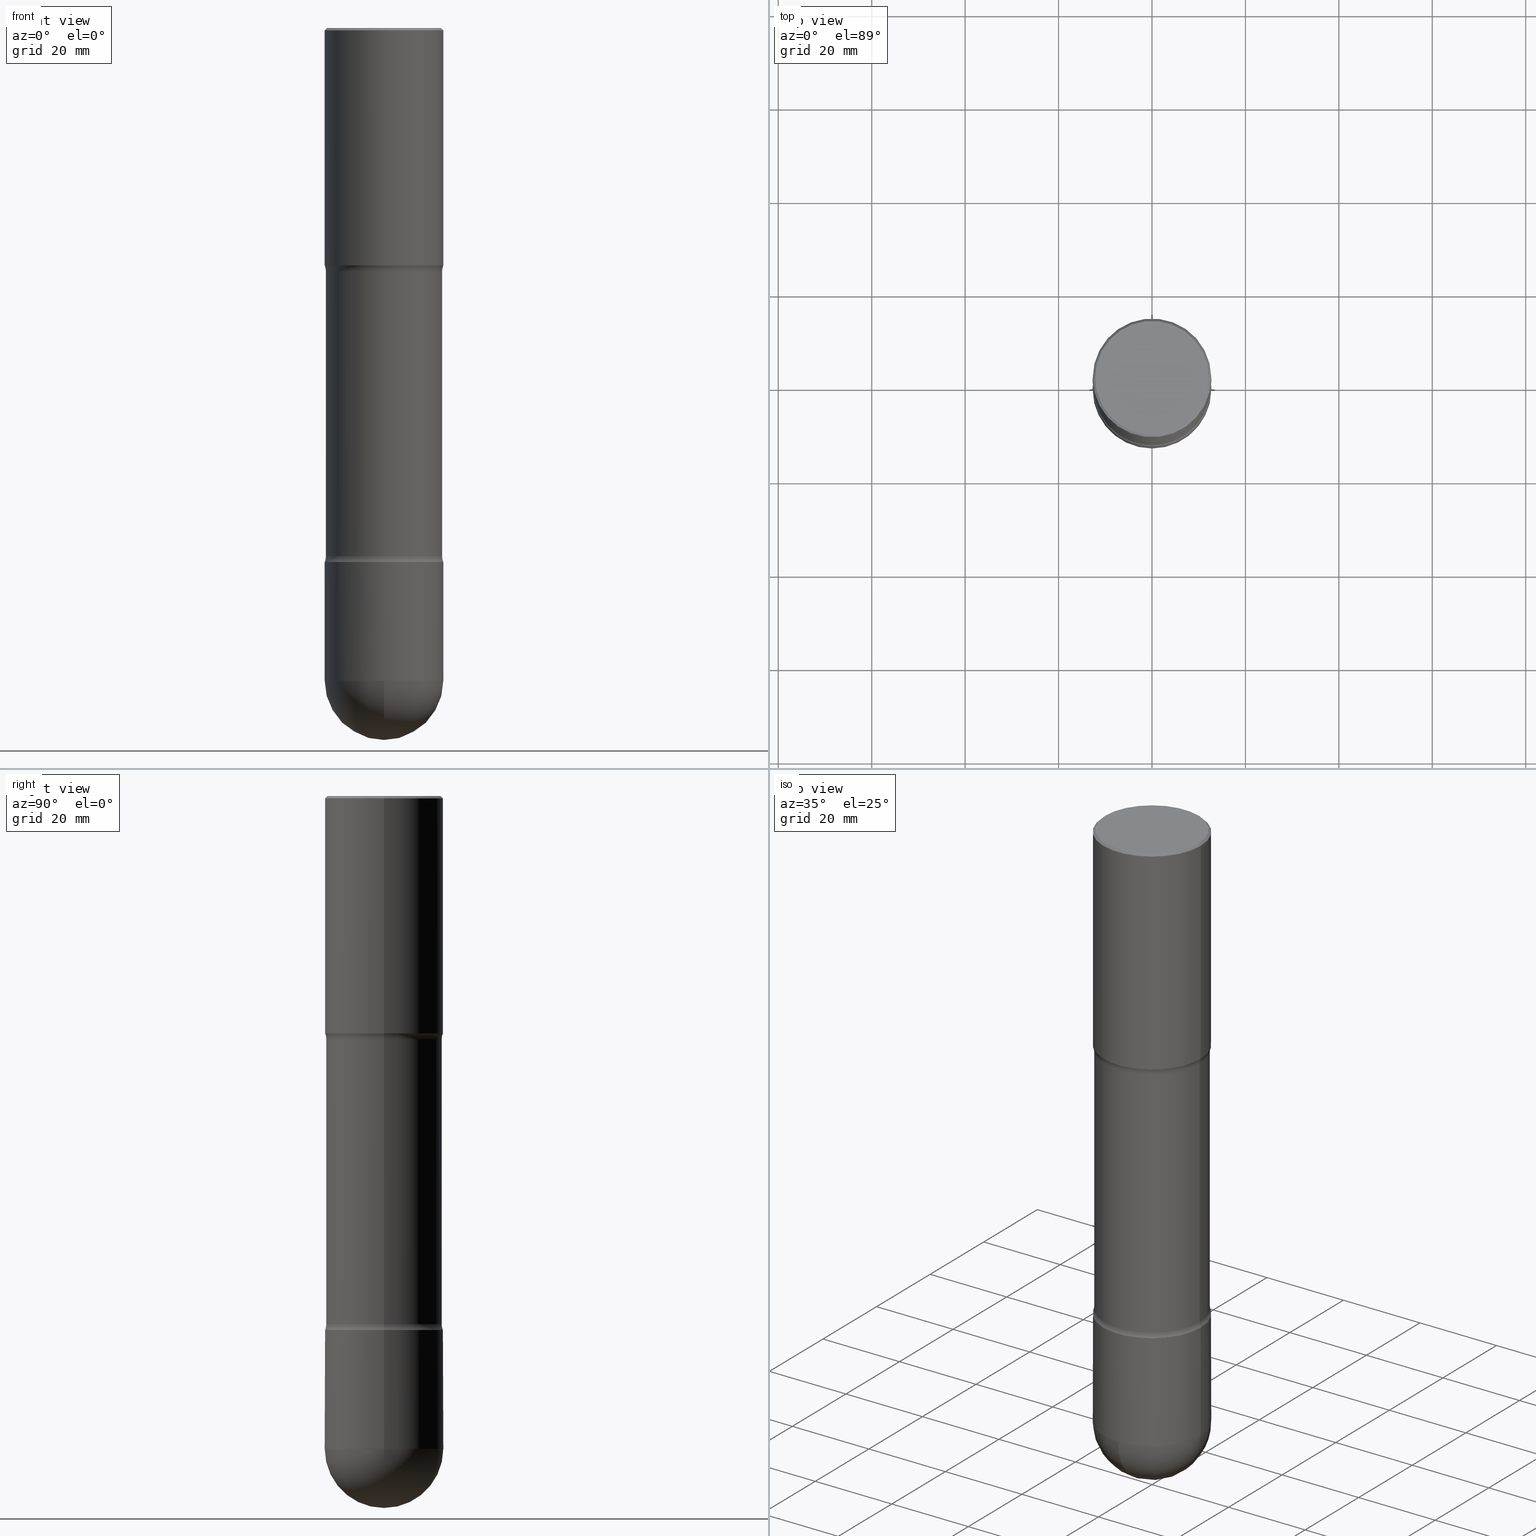
[diagram: canonical four-view strip — front | top / right | iso, engineering-drawing reading convention]
A machine part, canonical four-view strip (front | top / right | iso — engineering-drawing reading convention). The complete STEP part file that produces these views, byte-faithful:
ISO-10303-21;
HEADER;
FILE_DESCRIPTION (( 'STEP AP203' ),
    '1' );
FILE_NAME ('36504.STEP',
    '2024-02-29T19:25:03',
    ( '' ),
    ( '' ),
    'SwSTEP 2.0',
    'SolidWorks 2023',
    '' );
FILE_SCHEMA (( 'CONFIG_CONTROL_DESIGN' ));
ENDSEC;

DATA;
#1 =( CONVERSION_BASED_UNIT ( 'INCH', #350 ) LENGTH_UNIT ( ) NAMED_UNIT ( #161 ) );
#2 = DIRECTION ( 'NONE',  ( 1.000000000000000000, -6.982962677686265922E-15, 4.883557194083112340E-29 ) ) ;
#3 = EDGE_CURVE ( 'NONE', #564, #496, #482, .T. ) ;
#4 = ORIENTED_EDGE ( 'NONE', *, *, #517, .T. ) ;
#5 = CONICAL_SURFACE ( 'NONE', #86, 0.4994999999999991114, 0.7853981633978374122 ) ;
#6 = VECTOR ( 'NONE', #16, 39.37007874015748143 ) ;
#7 =( LENGTH_UNIT ( ) NAMED_UNIT ( * ) SI_UNIT ( $, .METRE. ) );
#8 = CARTESIAN_POINT ( 'NONE',  ( 1.100375108488801115E-28, -1.571044025300600309E-14, -4.499648925006553668 ) ) ;
#9 = CC_DESIGN_SECURITY_CLASSIFICATION ( #373, ( #389 ) ) ;
#10 = VERTEX_POINT ( 'NONE', #137 ) ;
#11 = LINE ( 'NONE', #225, #208 ) ;
#12 = ORIENTED_EDGE ( 'NONE', *, *, #37, .F. ) ;
#13 = ORIENTED_EDGE ( 'NONE', *, *, #199, .T. ) ;
#14 = CC_DESIGN_PERSON_AND_ORGANIZATION_ASSIGNMENT ( #465, #327, ( #389 ) ) ;
#15 = EDGE_CURVE ( 'NONE', #564, #408, #177, .T. ) ;
#16 = DIRECTION ( 'NONE',  ( -2.445468806185136877E-29, 3.491481338843145188E-15, 1.000000000000000000 ) ) ;
#17 = PLANE ( 'NONE',  #323 ) ;
#18 = ORIENTED_EDGE ( 'NONE', *, *, #224, .T. ) ;
#19 = DIRECTION ( 'NONE',  ( -1.000000000000000000, 6.860497997771529196E-15, 0.000000000000000000 ) ) ;
#20 = COORDINATED_UNIVERSAL_TIME_OFFSET ( 5, 0, .BEHIND. ) ;
#21 = VECTOR ( 'NONE', #222, 39.37007874015748143 ) ;
#22 = DIRECTION ( 'NONE',  ( 0.7071067811868226860, -2.468850131085139164E-15, 0.7071067811862723484 ) ) ;
#23 = DIRECTION ( 'NONE',  ( 1.000000000000000000, -6.982962677686266711E-15, 4.876176775795935232E-29 ) ) ;
#24 = ORIENTED_EDGE ( 'NONE', *, *, #3, .T. ) ;
#25 = DIRECTION ( 'NONE',  ( -1.000000000000000000, 6.982962677686268288E-15, 0.000000000000000000 ) ) ;
#26 = DIRECTION ( 'NONE',  ( -1.000000000000000000, 6.982962677686268288E-15, 0.000000000000000000 ) ) ;
#27 = DIRECTION ( 'NONE',  ( -1.000000000000000000, 6.982962677686265133E-15, 0.000000000000000000 ) ) ;
#28 = CARTESIAN_POINT ( 'NONE',  ( 4.890937612370354609E-31, -6.982962677686407473E-17, -0.02000000000000033348 ) ) ;
#29 = DIRECTION ( 'NONE',  ( 1.000000000000000000, 0.000000000000000000, 0.000000000000000000 ) ) ;
#30 = DIRECTION ( 'NONE',  ( -1.000000000000000000, 6.982962677686265922E-15, -4.876176775795935793E-29 ) ) ;
#31 = DATE_AND_TIME ( #113, #348 ) ;
#32 = CARTESIAN_POINT ( 'NONE',  ( 0.000000000000000000, 0.000000000000000000, 0.000000000000000000 ) ) ;
#33 = PERSON_AND_ORGANIZATION ( #417, #278 ) ;
#34 = VECTOR ( 'NONE', #410, 39.37007874015748143 ) ;
#35 = LOCAL_TIME ( 14, 25, 3.000000000000000000, #20 ) ;
#36 = ORIENTED_EDGE ( 'NONE', *, *, #559, .T. ) ;
#37 = EDGE_CURVE ( 'NONE', #475, #490, #382, .T. ) ;
#38 = DIRECTION ( 'NONE',  ( 2.445468806185136597E-29, -3.491481338843145583E-15, -1.000000000000000000 ) ) ;
#39 = EDGE_LOOP ( 'NONE', ( #268, #462, #24, #203 ) ) ;
#40 = DIRECTION ( 'NONE',  ( 1.000000000000000000, -6.982962677686268288E-15, 0.000000000000000000 ) ) ;
#41 = ORIENTED_EDGE ( 'NONE', *, *, #500, .F. ) ;
#42 = DIRECTION ( 'NONE',  ( 2.445468806185136877E-29, -3.491481338843145188E-15, -1.000000000000000000 ) ) ;
#43 = AXIS2_PLACEMENT_3D ( 'NONE', #257, #219, #344 ) ;
#44 = CARTESIAN_POINT ( 'NONE',  ( 3.487989857504394083E-15, 0.4994999999999834572, -4.500000000000002665 ) ) ;
#45 = CARTESIAN_POINT ( 'NONE',  ( -0.4999999999999991118, 3.552713678800494618E-15, -2.459467545127448407E-29 ) ) ;
#46 = CARTESIAN_POINT ( 'NONE',  ( 1.100460962783311693E-28, -1.571166602479415690E-14, -4.500000000000000888 ) ) ;
#47 = ORIENTED_EDGE ( 'NONE', *, *, #307, .F. ) ;
#48 = ORIENTED_EDGE ( 'NONE', *, *, #328, .F. ) ;
#49 = DIRECTION ( 'NONE',  ( 2.438088387897960049E-29, -3.491481338843145188E-15, -1.000000000000000000 ) ) ;
#50 = APPLICATION_CONTEXT ( 'configuration controlled 3d designs of mechanical parts and assemblies' ) ;
#51 = DIRECTION ( 'NONE',  ( -1.000000000000000000, 6.982962677686265133E-15, 0.000000000000000000 ) ) ;
#52 = EDGE_LOOP ( 'NONE', ( #148, #144 ) ) ;
#53 = DIRECTION ( 'NONE',  ( 6.860497997771531562E-15, 1.000000000000000000, -3.491481338843145583E-15 ) ) ;
#54 = PERSON_AND_ORGANIZATION ( #417, #278 ) ;
#55 = CIRCLE ( 'NONE', #213, 0.4999999999999987788 ) ;
#56 = CARTESIAN_POINT ( 'NONE',  ( 1.100460962783311693E-28, -1.571166602479415690E-14, -4.500000000000000888 ) ) ;
#57 = VECTOR ( 'NONE', #281, 39.37007874015748143 ) ;
#58 = DIRECTION ( 'NONE',  ( -1.000000000000000000, 6.982962677686265922E-15, -4.883557194083112901E-29 ) ) ;
#59 = EDGE_LOOP ( 'NONE', ( #271, #481, #396, #120, #18 ) ) ;
#60 = CARTESIAN_POINT ( 'NONE',  ( -0.4999999999999992228, -1.390469301541523684E-14, -4.500000000000000888 ) ) ;
#61 = EDGE_CURVE ( 'NONE', #263, #302, #381, .T. ) ;
#62 = DIRECTION ( 'NONE',  ( -1.000000000000000000, 6.982962677686267499E-15, 0.000000000000000000 ) ) ;
#63 = ORIENTED_EDGE ( 'NONE', *, *, #544, .F. ) ;
#64 = DIRECTION ( 'NONE',  ( -1.000000000000000000, 6.982962677686265922E-15, -4.883557194083112901E-29 ) ) ;
#65 = COORDINATED_UNIVERSAL_TIME_OFFSET ( 5, 0, .BEHIND. ) ;
#66 = CIRCLE ( 'NONE', #138, 0.1250000000000084932 ) ;
#67 = AXIS2_PLACEMENT_3D ( 'NONE', #46, #227, #62 ) ;
#68 = DATE_AND_TIME ( #470, #107 ) ;
#69 = FACE_OUTER_BOUND ( 'NONE', #202, .T. ) ;
#70 = EDGE_CURVE ( 'NONE', #195, #91, #272, .T. ) ;
#71 = LOCAL_TIME ( 14, 25, 3.000000000000000000, #212 ) ;
#72 = AXIS2_PLACEMENT_3D ( 'NONE', #126, #530, #379 ) ;
#73 = VECTOR ( 'NONE', #543, 39.37007874015748143 ) ;
#74 = ORIENTED_EDGE ( 'NONE', *, *, #333, .T. ) ;
#75 = ADVANCED_FACE ( 'NONE', ( #69 ), #5, .T. ) ;
#76 = FACE_OUTER_BOUND ( 'NONE', #495, .T. ) ;
#77 = EDGE_LOOP ( 'NONE', ( #12, #84, #13, #289 ) ) ;
#78 = PRODUCT ( '36504', '36504', '', ( #280 ) ) ;
#79 = AXIS2_PLACEMENT_3D ( 'NONE', #183, #83, #361 ) ;
#80 = DIRECTION ( 'NONE',  ( -2.445468806185136597E-29, 3.491481338843145583E-15, 1.000000000000000000 ) ) ;
#81 = DIRECTION ( 'NONE',  ( -1.000000000000000000, 6.982962677686265922E-15, 0.000000000000000000 ) ) ;
#82 = DIRECTION ( 'NONE',  ( 2.445468806185136597E-29, -3.491481338843145583E-15, -1.000000000000000000 ) ) ;
#83 = DIRECTION ( 'NONE',  ( 6.860497997771531562E-15, 1.000000000000000000, -3.491481338843145583E-15 ) ) ;
#84 = ORIENTED_EDGE ( 'NONE', *, *, #178, .F. ) ;
#85 = CARTESIAN_POINT ( 'NONE',  ( 0.6150000000000083178, -1.975982533889140027E-14, -4.451010205144337206 ) ) ;
#86 = AXIS2_PLACEMENT_3D ( 'NONE', #157, #80, #386 ) ;
#87 = AXIS2_PLACEMENT_3D ( 'NONE', #140, #274, #260 ) ;
#88 = CARTESIAN_POINT ( 'NONE',  ( 0.4994999999999991114, -1.920026876819252099E-14, -4.500000000000000888 ) ) ;
#89 = DIRECTION ( 'NONE',  ( -2.445468806185136597E-29, 3.491481338843145583E-15, 1.000000000000000000 ) ) ;
#90 = PRODUCT_RELATED_PRODUCT_CATEGORY ( 'detail', '', ( #78 ) ) ;
#91 = VERTEX_POINT ( 'NONE', #521 ) ;
#92 = ORIENTED_EDGE ( 'NONE', *, *, #517, .F. ) ;
#93 =( NAMED_UNIT ( * ) PLANE_ANGLE_UNIT ( ) SI_UNIT ( $, .RADIAN. ) );
#94 = CARTESIAN_POINT ( 'NONE',  ( 1.100460962783311693E-28, -1.571166602479415690E-14, -4.500000000000000888 ) ) ;
#95 = DIRECTION ( 'NONE',  ( -2.438088387897960049E-29, 3.491481338843145188E-15, 1.000000000000000000 ) ) ;
#96 = ORIENTED_EDGE ( 'NONE', *, *, #37, .T. ) ;
#97 = PRODUCT_DEFINITION_SHAPE ( 'NONE', 'NONE',  #440 ) ;
#98 = DIRECTION ( 'NONE',  ( -1.000000000000000000, 6.982962677686267499E-15, -4.876176775795936353E-29 ) ) ;
#99 = CARTESIAN_POINT ( 'NONE',  ( -0.4999999999999996669, 3.421651712066266507E-15, -0.02000000000000033348 ) ) ;
#100 = CARTESIAN_POINT ( 'NONE',  ( 1.100375108488801115E-28, -1.571044025300600309E-14, -4.499648925006553668 ) ) ;
#101 = ORIENTED_EDGE ( 'NONE', *, *, #133, .F. ) ;
#102 = CALENDAR_DATE ( 2024, 29, 2 ) ;
#103 = CONICAL_SURFACE ( 'NONE', #173, 0.4994999999999991114, 0.7853981633978374122 ) ;
#104 = DIRECTION ( 'NONE',  ( 2.445468806185136597E-29, -3.491481338843145583E-15, -1.000000000000000000 ) ) ;
#105 = VECTOR ( 'NONE', #22, 39.37007874015748143 ) ;
#106 = APPLICATION_PROTOCOL_DEFINITION ( 'international standard', 'config_control_design', 1994, #159 ) ;
#107 = LOCAL_TIME ( 14, 25, 3.000000000000000000, #516 ) ;
#108 = DIRECTION ( 'NONE',  ( -2.445468806185136597E-29, 3.491481338843145583E-15, 1.000000000000000000 ) ) ;
#109 = ORIENTED_EDGE ( 'NONE', *, *, #509, .F. ) ;
#110 = CARTESIAN_POINT ( 'NONE',  ( 1.100460962783311693E-28, -1.571166602479415690E-14, -4.500000000000000888 ) ) ;
#111 = PERSON_AND_ORGANIZATION ( #417, #278 ) ;
#112 = DIRECTION ( 'NONE',  ( -2.445468806185136597E-29, 3.491481338843145583E-15, 1.000000000000000000 ) ) ;
#113 = CALENDAR_DATE ( 2024, 29, 2 ) ;
#114 = AXIS2_PLACEMENT_3D ( 'NONE', #162, #38, #166 ) ;
#115 = EDGE_CURVE ( 'NONE', #10, #195, #474, .T. ) ;
#116 = ORIENTED_EDGE ( 'NONE', *, *, #61, .T. ) ;
#117 = DESIGN_CONTEXT ( 'detailed design', #50, 'design' ) ;
#118 = ORIENTED_EDGE ( 'NONE', *, *, #70, .T. ) ;
#119 = DIRECTION ( 'NONE',  ( 2.445468806185136597E-29, -3.491481338843145583E-15, -1.000000000000000000 ) ) ;
#120 = ORIENTED_EDGE ( 'NONE', *, *, #70, .F. ) ;
#121 = CARTESIAN_POINT ( 'NONE',  ( 1.345007843401825128E-28, -1.920314736363730603E-14, -5.500000000000000888 ) ) ;
#122 = DIRECTION ( 'NONE',  ( -1.000000000000000000, 6.982962677686264344E-15, 0.000000000000000000 ) ) ;
#123 = EDGE_CURVE ( 'NONE', #256, #304, #338, .T. ) ;
#124 = CIRCLE ( 'NONE', #346, 0.4999999999999990563 ) ;
#125 = AXIS2_PLACEMENT_3D ( 'NONE', #135, #89, #23 ) ;
#126 = CARTESIAN_POINT ( 'NONE',  ( 1.088480661269218183E-28, -1.554061907026185434E-14, -4.451010205144337206 ) ) ;
#127 = VERTEX_POINT ( 'NONE', #533 ) ;
#128 = EDGE_CURVE ( 'NONE', #531, #10, #124, .T. ) ;
#129 = ADVANCED_FACE ( 'NONE', ( #259 ), #163, .F. ) ;
#130 = DIRECTION ( 'NONE',  ( -2.445468806185136597E-29, 3.491481338843145583E-15, 1.000000000000000000 ) ) ;
#131 = ORIENTED_EDGE ( 'NONE', *, *, #204, .F. ) ;
#132 = CARTESIAN_POINT ( 'NONE',  ( 1.340732011955928297E-28, -1.926437970359467045E-14, -5.500000000000000888 ) ) ;
#133 = EDGE_CURVE ( 'NONE', #525, #490, #477, .T. ) ;
#134 = LINE ( 'NONE', #399, #105 ) ;
#135 = CARTESIAN_POINT ( 'NONE',  ( 0.000000000000000000, 0.000000000000000000, 0.000000000000000000 ) ) ;
#136 = CIRCLE ( 'NONE', #201, 0.4899999999999997691 ) ;
#137 = CARTESIAN_POINT ( 'NONE',  ( -3.552713678800358146E-15, -0.5000000000000182077, -5.499999999999999112 ) ) ;
#138 = AXIS2_PLACEMENT_3D ( 'NONE', #563, #522, #565 ) ;
#139 = AXIS2_PLACEMENT_3D ( 'NONE', #196, #553, #303 ) ;
#140 = CARTESIAN_POINT ( 'NONE',  ( 1.340732011955928297E-28, -1.926437970359467045E-14, -5.500000000000000888 ) ) ;
#141 = ORIENTED_EDGE ( 'NONE', *, *, #224, .F. ) ;
#142 = CARTESIAN_POINT ( 'NONE',  ( -0.4799999999999996492, 3.351822085289405970E-15, -2.340564852382047723E-29 ) ) ;
#143 = CARTESIAN_POINT ( 'NONE',  ( 1.100460962783311693E-28, -1.571166602479415690E-14, -4.500000000000000888 ) ) ;
#144 = ORIENTED_EDGE ( 'NONE', *, *, #500, .T. ) ;
#145 = PERSON_AND_ORGANIZATION ( #417, #278 ) ;
#146 = DIRECTION ( 'NONE',  ( -1.000000000000000000, 6.982962677686266711E-15, 0.000000000000000000 ) ) ;
#147 = DIRECTION ( 'NONE',  ( -1.000000000000000000, 6.982962677686266711E-15, 0.000000000000000000 ) ) ;
#148 = ORIENTED_EDGE ( 'NONE', *, *, #433, .T. ) ;
#149 = CARTESIAN_POINT ( 'NONE',  ( -0.4899999999999995470, -1.229001431272789000E-14, -4.500000000000000888 ) ) ;
#150 = APPROVAL_ROLE ( '' ) ;
#151 = AXIS2_PLACEMENT_3D ( 'NONE', #214, #413, #451 ) ;
#152 = DIRECTION ( 'NONE',  ( 2.438088387897960049E-29, -3.491481338843145188E-15, -1.000000000000000000 ) ) ;
#153 = CARTESIAN_POINT ( 'NONE',  ( 0.000000000000000000, 0.000000000000000000, 0.000000000000000000 ) ) ;
#154 = CIRCLE ( 'NONE', #405, 0.4998510749934460540 ) ;
#155 = AXIS2_PLACEMENT_3D ( 'NONE', #534, #325, #510 ) ;
#156 = ORIENTED_EDGE ( 'NONE', *, *, #467, .F. ) ;
#157 = CARTESIAN_POINT ( 'NONE',  ( 1.100460962783311693E-28, -1.571166602479415690E-14, -4.500000000000000888 ) ) ;
#158 = MANIFOLD_SOLID_BREP ( 'Body-Move/Copy2[1]', #492 ) ;
#159 = APPLICATION_CONTEXT ( 'configuration controlled 3d designs of mechanical parts and assemblies' ) ;
#160 = PERSON_AND_ORGANIZATION_ROLE ( 'creator' ) ;
#161 = DIMENSIONAL_EXPONENTS ( 1.000000000000000000, 0.000000000000000000, 0.000000000000000000, 0.000000000000000000, 0.000000000000000000, 0.000000000000000000, 0.000000000000000000 ) ;
#162 = CARTESIAN_POINT ( 'NONE',  ( 5.010740627511209416E-29, -7.154009632218597667E-15, -2.048989794855664126 ) ) ;
#163 = TOROIDAL_SURFACE ( 'NONE', #244, 0.6149999999999876676, 0.1249999999999882871 ) ;
#164 = AXIS2_PLACEMENT_3D ( 'NONE', #143, #511, #26 ) ;
#165 = VERTEX_POINT ( 'NONE', #385 ) ;
#166 = DIRECTION ( 'NONE',  ( -1.000000000000000000, 6.982962677686265922E-15, 0.000000000000000000 ) ) ;
#167 = ORIENTED_EDGE ( 'NONE', *, *, #443, .T. ) ;
#168 = DIRECTION ( 'NONE',  ( -2.445468806185136597E-29, 3.491481338843145583E-15, 1.000000000000000000 ) ) ;
#169 = EDGE_CURVE ( 'NONE', #408, #490, #560, .T. ) ;
#170 = CARTESIAN_POINT ( 'NONE',  ( 0.4999999999999998335, -1.914191502367992268E-14, -4.500000000000000888 ) ) ;
#171 = DIRECTION ( 'NONE',  ( -2.445468806185136597E-29, 3.491481338843145583E-15, 1.000000000000000000 ) ) ;
#172 = APPROVAL_PERSON_ORGANIZATION ( #54, #538, #150 ) ;
#173 = AXIS2_PLACEMENT_3D ( 'NONE', #349, #345, #205 ) ;
#174 = EDGE_LOOP ( 'NONE', ( #63, #116, #74, #374 ) ) ;
#175 = DIRECTION ( 'NONE',  ( 2.445468806185136597E-29, -3.491481338843145583E-15, -1.000000000000000000 ) ) ;
#176 = CARTESIAN_POINT ( 'NONE',  ( 1.345007843401825128E-28, -1.920314736363730603E-14, -5.500000000000000888 ) ) ;
#177 = LINE ( 'NONE', #149, #21 ) ;
#178 = EDGE_CURVE ( 'NONE', #551, #475, #154, .T. ) ;
#179 = FACE_OUTER_BOUND ( 'NONE', #485, .T. ) ;
#180 = FACE_OUTER_BOUND ( 'NONE', #174, .T. ) ;
#181 = ORIENTED_EDGE ( 'NONE', *, *, #3, .F. ) ;
#182 = ORIENTED_EDGE ( 'NONE', *, *, #337, .T. ) ;
#183 = CARTESIAN_POINT ( 'NONE',  ( 0.6149999999999876676, -1.137321590084800476E-14, -2.048989794855664126 ) ) ;
#184 = CARTESIAN_POINT ( 'NONE',  ( 1.100460962783311693E-28, -1.571166602479415690E-14, -4.500000000000000888 ) ) ;
#185 = ORIENTED_EDGE ( 'NONE', *, *, #115, .T. ) ;
#186 = CARTESIAN_POINT ( 'NONE',  ( 0.000000000000000000, 0.000000000000000000, 0.000000000000000000 ) ) ;
#187 = AXIS2_PLACEMENT_3D ( 'NONE', #28, #449, #147 ) ;
#188 = CARTESIAN_POINT ( 'NONE',  ( 1.345007843401825128E-28, -1.920314736363730603E-14, -5.500000000000000888 ) ) ;
#189 = CARTESIAN_POINT ( 'NONE',  ( -0.4999999999999998335, -1.222018468595102670E-14, -4.500000000000000888 ) ) ;
#190 = CARTESIAN_POINT ( 'NONE',  ( 1.340732011955928297E-28, -1.926437970359467045E-14, -5.500000000000000888 ) ) ;
#191 = ORIENTED_EDGE ( 'NONE', *, *, #211, .T. ) ;
#192 = DIRECTION ( 'NONE',  ( 2.445468806185136597E-29, -3.491481338843145583E-15, -1.000000000000000000 ) ) ;
#193 = CARTESIAN_POINT ( 'NONE',  ( 0.4998510749934460540, -1.913966755218248714E-14, -4.499648925006553668 ) ) ;
#194 = ORIENTED_EDGE ( 'NONE', *, *, #115, .F. ) ;
#195 = VERTEX_POINT ( 'NONE', #387 ) ;
#196 = CARTESIAN_POINT ( 'NONE',  ( 4.890937612370277678E-29, -6.982962677686296687E-15, -2.000000000000001776 ) ) ;
#197 = DIRECTION ( 'NONE',  ( 1.000000000000000000, -6.982962677686266711E-15, 0.000000000000000000 ) ) ;
#198 = AXIS2_PLACEMENT_3D ( 'NONE', #239, #241, #326 ) ;
#199 = EDGE_CURVE ( 'NONE', #551, #408, #66, .T. ) ;
#200 = APPROVAL_ROLE ( '' ) ;
#201 = AXIS2_PLACEMENT_3D ( 'NONE', #431, #82, #438 ) ;
#202 = EDGE_LOOP ( 'NONE', ( #47, #401, #528, #412 ) ) ;
#203 = ORIENTED_EDGE ( 'NONE', *, *, #377, .T. ) ;
#204 = EDGE_CURVE ( 'NONE', #490, #408, #136, .T. ) ;
#205 = DIRECTION ( 'NONE',  ( 1.000000000000000000, -6.982962677686264344E-15, 0.000000000000000000 ) ) ;
#206 = AXIS2_PLACEMENT_3D ( 'NONE', #176, #171, #301 ) ;
#207 = TOROIDAL_SURFACE ( 'NONE', #155, 0.6149999999999876676, 0.1249999999999882871 ) ;
#208 = VECTOR ( 'NONE', #529, 39.37007874015748143 ) ;
#209 = ORIENTED_EDGE ( 'NONE', *, *, #377, .F. ) ;
#210 = EDGE_LOOP ( 'NONE', ( #557, #191, #141, #194 ) ) ;
#211 = EDGE_CURVE ( 'NONE', #317, #127, #55, .T. ) ;
#212 = COORDINATED_UNIVERSAL_TIME_OFFSET ( 5, 0, .BEHIND. ) ;
#213 = AXIS2_PLACEMENT_3D ( 'NONE', #296, #2, #251 ) ;
#214 = CARTESIAN_POINT ( 'NONE',  ( -0.6149999999999876676, -2.859487585441629073E-15, -2.048989794855664126 ) ) ;
#215 = DIRECTION ( 'NONE',  ( 1.000000000000000000, -6.982962677686268288E-15, 0.000000000000000000 ) ) ;
#216 = CARTESIAN_POINT ( 'NONE',  ( -0.4998510749934460540, -1.221999885192540829E-14, -4.499648925006553668 ) ) ;
#217 = DIRECTION ( 'NONE',  ( -1.000000000000000000, 6.982962677686265922E-15, -4.876176775795935793E-29 ) ) ;
#218 = ORIENTED_EDGE ( 'NONE', *, *, #204, .T. ) ;
#219 = DIRECTION ( 'NONE',  ( 2.445468806185136597E-29, -3.491481338843145583E-15, -1.000000000000000000 ) ) ;
#220 = CARTESIAN_POINT ( 'NONE',  ( 1.100460962783311693E-28, -1.571166602479415690E-14, -4.500000000000000888 ) ) ;
#221 = FACE_OUTER_BOUND ( 'NONE', #394, .T. ) ;
#222 = DIRECTION ( 'NONE',  ( 2.445468806185136877E-29, -3.491481338843145188E-15, -1.000000000000000000 ) ) ;
#223 = APPROVAL_DATE_TIME ( #31, #391 ) ;
#224 = EDGE_CURVE ( 'NONE', #195, #127, #466, .T. ) ;
#225 = CARTESIAN_POINT ( 'NONE',  ( 0.4999999999999996669, -3.500078625662627896E-15, -0.02000000000000033348 ) ) ;
#226 = CARTESIAN_POINT ( 'NONE',  ( 1.465143367988133318E-28, -2.097950420303755649E-14, -5.999999999999999112 ) ) ;
#227 = DIRECTION ( 'NONE',  ( 2.445468806185136597E-29, -3.491481338843145583E-15, -1.000000000000000000 ) ) ;
#228 = ORIENTED_EDGE ( 'NONE', *, *, #247, .T. ) ;
#229 = CARTESIAN_POINT ( 'NONE',  ( 0.4999999999999991118, -3.491481338843127044E-15, 2.438088387897963412E-29 ) ) ;
#230 = AXIS2_PLACEMENT_3D ( 'NONE', #315, #441, #146 ) ;
#231 = ADVANCED_FACE ( 'NONE', ( #76 ), #103, .T. ) ;
#232 = DIRECTION ( 'NONE',  ( -1.000000000000000000, 6.982962677686267499E-15, 0.000000000000000000 ) ) ;
#233 = DIRECTION ( 'NONE',  ( 2.445468806185136597E-29, -3.491481338843145583E-15, -1.000000000000000000 ) ) ;
#234 = EDGE_LOOP ( 'NONE', ( #101, #243, #513, #131 ) ) ;
#235 = ORIENTED_EDGE ( 'NONE', *, *, #128, .T. ) ;
#236 = PERSON_AND_ORGANIZATION_ROLE ( 'design_supplier' ) ;
#237 = DIRECTION ( 'NONE',  ( 1.000000000000000000, -6.982962677686268288E-15, 0.000000000000000000 ) ) ;
#238 = ADVANCED_FACE ( 'NONE', ( #429 ), #535, .F. ) ;
#239 = CARTESIAN_POINT ( 'NONE',  ( 4.890937612370277678E-29, -6.982962677686296687E-15, -2.000000000000001776 ) ) ;
#240 = EDGE_LOOP ( 'NONE', ( #378, #358 ) ) ;
#241 = DIRECTION ( 'NONE',  ( 2.445468806185136597E-29, -3.491481338843145583E-15, -1.000000000000000000 ) ) ;
#242 = COORDINATED_UNIVERSAL_TIME_OFFSET ( 5, 0, .BEHIND. ) ;
#243 = ORIENTED_EDGE ( 'NONE', *, *, #562, .T. ) ;
#244 = AXIS2_PLACEMENT_3D ( 'NONE', #480, #439, #524 ) ;
#245 = AXIS2_PLACEMENT_3D ( 'NONE', #110, #152, #30 ) ;
#246 = PERSON_AND_ORGANIZATION_ROLE ( 'design_owner' ) ;
#247 = EDGE_CURVE ( 'NONE', #564, #525, #354, .T. ) ;
#248 = ORIENTED_EDGE ( 'NONE', *, *, #211, .F. ) ;
#249 = CC_DESIGN_APPROVAL ( #384, ( #440 ) ) ;
#250 = AXIS2_PLACEMENT_3D ( 'NONE', #44, #49, #217 ) ;
#251 = DIRECTION ( 'NONE',  ( 6.982962677686265922E-15, 1.000000000000000000, 0.000000000000000000 ) ) ;
#252 = CARTESIAN_POINT ( 'NONE',  ( 0.4899999999999995470, -1.907331004370220774E-14, -4.500000000000000888 ) ) ;
#253 = CARTESIAN_POINT ( 'NONE',  ( 1.088480661269218183E-28, -1.554061907026185434E-14, -4.451010205144337206 ) ) ;
#254 = AXIS2_PLACEMENT_3D ( 'NONE', #220, #454, #25 ) ;
#255 = UNCERTAINTY_MEASURE_WITH_UNIT (LENGTH_MEASURE( 1.000000000000000082E-05 ), #1, 'distance_accuracy_value', 'NONE');
#256 = VERTEX_POINT ( 'NONE', #547 ) ;
#257 = CARTESIAN_POINT ( 'NONE',  ( 4.890937612370354609E-31, -6.982962677686407473E-17, -0.02000000000000033348 ) ) ;
#258 = CARTESIAN_POINT ( 'NONE',  ( -0.4899999999999994360, -3.732357920152330765E-15, -2.048989794855664126 ) ) ;
#259 = FACE_OUTER_BOUND ( 'NONE', #295, .T. ) ;
#260 = DIRECTION ( 'NONE',  ( -7.105427357601001070E-15, -1.000000000000000000, 0.000000000000000000 ) ) ;
#261 = AXIS2_PLACEMENT_3D ( 'NONE', #186, #542, #98 ) ;
#262 = CIRCLE ( 'NONE', #164, 0.4994999999999991114 ) ;
#263 = VERTEX_POINT ( 'NONE', #497 ) ;
#264 = FACE_OUTER_BOUND ( 'NONE', #402, .T. ) ;
#265 = CC_DESIGN_DATE_AND_TIME_ASSIGNMENT ( #365, #552, ( #373 ) ) ;
#266 = CARTESIAN_POINT ( 'NONE',  ( 0.4899999999999994360, -1.046443266384935312E-14, -2.048989794855664126 ) ) ;
#267 = ADVANCED_FACE ( 'NONE', ( #306 ), #491, .T. ) ;
#268 = ORIENTED_EDGE ( 'NONE', *, *, #283, .F. ) ;
#269 = PLANE ( 'NONE',  #250 ) ;
#270 = DIRECTION ( 'NONE',  ( 2.445468806185136597E-29, -3.491481338843145583E-15, -1.000000000000000000 ) ) ;
#271 = ORIENTED_EDGE ( 'NONE', *, *, #341, .T. ) ;
#272 = LINE ( 'NONE', #229, #330 ) ;
#273 = APPROVAL_DATE_TIME ( #322, #538 ) ;
#274 = DIRECTION ( 'NONE',  ( -1.000000000000000000, 7.105427357601001070E-15, -4.926315508542082329E-29 ) ) ;
#275 = AXIS2_PLACEMENT_3D ( 'NONE', #32, #514, #29 ) ;
#276 = DIRECTION ( 'NONE',  ( 6.982962677686265922E-15, 1.000000000000000000, -4.370956789862832194E-15 ) ) ;
#277 = CONICAL_SURFACE ( 'NONE', #422, 0.4999999999999996669, 0.7853981633974397303 ) ;
#278 = ORGANIZATION ( 'UNSPECIFIED', 'UNSPECIFIED', '' ) ;
#279 = LINE ( 'NONE', #45, #6 ) ;
#280 = MECHANICAL_CONTEXT ( 'NONE', #159, 'mechanical' ) ;
#281 = DIRECTION ( 'NONE',  ( -0.7071067811868226860, 7.493145998871348125E-15, 0.7071067811862723484 ) ) ;
#282 = FACE_OUTER_BOUND ( 'NONE', #52, .T. ) ;
#283 = EDGE_CURVE ( 'NONE', #525, #304, #321, .T. ) ;
#284 = FACE_OUTER_BOUND ( 'NONE', #59, .T. ) ;
#285 = CIRCLE ( 'NONE', #369, 0.4899999999999994360 ) ;
#286 = APPLICATION_PROTOCOL_DEFINITION ( 'international standard', 'config_control_design', 1994, #50 ) ;
#287 = ADVANCED_FACE ( 'NONE', ( #180 ), #456, .T. ) ;
#288 = DATE_TIME_ROLE ( 'creation_date' ) ;
#289 = ORIENTED_EDGE ( 'NONE', *, *, #169, .T. ) ;
#290 = EDGE_CURVE ( 'NONE', #294, #475, #134, .T. ) ;
#291 = CIRCLE ( 'NONE', #198, 0.5000000000000000000 ) ;
#292 = DIRECTION ( 'NONE',  ( -1.000000000000000000, 6.982962677686265133E-15, 0.000000000000000000 ) ) ;
#293 = EDGE_CURVE ( 'NONE', #165, #496, #359, .T. ) ;
#294 = VERTEX_POINT ( 'NONE', #88 ) ;
#295 = EDGE_LOOP ( 'NONE', ( #450, #523, #4, #181 ) ) ;
#296 = CARTESIAN_POINT ( 'NONE',  ( 1.340732011955928297E-28, -1.926437970359467045E-14, -5.500000000000000888 ) ) ;
#297 = AXIS2_PLACEMENT_3D ( 'NONE', #121, #130, #215 ) ;
#298 = AXIS2_PLACEMENT_3D ( 'NONE', #100, #270, #407 ) ;
#299 = CC_DESIGN_APPROVAL ( #538, ( #373 ) ) ;
#300 = CC_DESIGN_DATE_AND_TIME_ASSIGNMENT ( #68, #288, ( #440 ) ) ;
#301 = DIRECTION ( 'NONE',  ( 1.000000000000000000, -6.982962677686268288E-15, 0.000000000000000000 ) ) ;
#302 = VERTEX_POINT ( 'NONE', #142 ) ;
#303 = DIRECTION ( 'NONE',  ( -1.000000000000000000, 6.982962677686266711E-15, 0.000000000000000000 ) ) ;
#304 = VERTEX_POINT ( 'NONE', #353 ) ;
#305 = DIRECTION ( 'NONE',  ( -1.000000000000000000, 6.982962677686265922E-15, -4.883557194083112901E-29 ) ) ;
#306 = FACE_OUTER_BOUND ( 'NONE', #234, .T. ) ;
#307 = EDGE_CURVE ( 'NONE', #512, #294, #526, .T. ) ;
#308 = AXIS2_PLACEMENT_3D ( 'NONE', #253, #339, #122 ) ;
#309 = LINE ( 'NONE', #498, #57 ) ;
#310 = CIRCLE ( 'NONE', #493, 0.4999999999999991673 ) ;
#311 = ORIENTED_EDGE ( 'NONE', *, *, #123, .F. ) ;
#312 = DIRECTION ( 'NONE',  ( -1.000000000000000000, 6.982962677686267499E-15, -4.876176775795936353E-29 ) ) ;
#313 = DIRECTION ( 'NONE',  ( 2.445468806185136597E-29, -3.491481338843145583E-15, -1.000000000000000000 ) ) ;
#314 = CALENDAR_DATE ( 2024, 29, 2 ) ;
#315 = CARTESIAN_POINT ( 'NONE',  ( 4.890937612370354609E-31, -6.982962677686407473E-17, -0.02000000000000033348 ) ) ;
#316 = FACE_OUTER_BOUND ( 'NONE', #210, .T. ) ;
#317 = VERTEX_POINT ( 'NONE', #226 ) ;
#318 = SECURITY_CLASSIFICATION_LEVEL ( 'unclassified' ) ;
#319 = CARTESIAN_POINT ( 'NONE',  ( 0.000000000000000000, 0.000000000000000000, 0.000000000000000000 ) ) ;
#320 = CARTESIAN_POINT ( 'NONE',  ( -0.4994999999999991114, -1.216064490484688391E-14, -4.500000000000000888 ) ) ;
#321 = CIRCLE ( 'NONE', #79, 0.1249999999999882871 ) ;
#322 = DATE_AND_TIME ( #314, #35 ) ;
#323 = AXIS2_PLACEMENT_3D ( 'NONE', #502, #95, #541 ) ;
#324 = ADVANCED_FACE ( 'NONE', ( #264 ), #277, .T. ) ;
#325 = DIRECTION ( 'NONE',  ( 2.445468806185136597E-29, -3.491481338843145583E-15, -1.000000000000000000 ) ) ;
#326 = DIRECTION ( 'NONE',  ( -1.000000000000000000, 6.982962677686266711E-15, 0.000000000000000000 ) ) ;
#327 = PERSON_AND_ORGANIZATION_ROLE ( 'creator' ) ;
#328 = EDGE_CURVE ( 'NONE', #531, #352, #279, .T. ) ;
#329 = DATE_AND_TIME ( #376, #71 ) ;
#330 = VECTOR ( 'NONE', #409, 39.37007874015748143 ) ;
#331 = EDGE_LOOP ( 'NONE', ( #425, #96, #218, #447 ) ) ;
#332 = AXIS2_PLACEMENT_3D ( 'NONE', #56, #104, #232 ) ;
#333 = EDGE_CURVE ( 'NONE', #302, #165, #506, .T. ) ;
#334 = APPROVAL_ROLE ( '' ) ;
#335 = PERSON_AND_ORGANIZATION ( #417, #278 ) ;
#336 = CC_DESIGN_PERSON_AND_ORGANIZATION_ASSIGNMENT ( #335, #160, ( #440 ) ) ;
#337 = EDGE_CURVE ( 'NONE', #317, #10, #347, .T. ) ;
#338 = LINE ( 'NONE', #170, #434 ) ;
#339 = DIRECTION ( 'NONE',  ( 2.445468806185136597E-29, -3.491481338843145583E-15, -1.000000000000000000 ) ) ;
#340 = MANIFOLD_SOLID_BREP ( 'Body-Move/Copy2[2]', #420 ) ;
#341 = EDGE_CURVE ( 'NONE', #127, #531, #426, .T. ) ;
#342 = ORIENTED_EDGE ( 'NONE', *, *, #290, .T. ) ;
#343 = APPROVAL_PERSON_ORGANIZATION ( #33, #391, #334 ) ;
#344 = DIRECTION ( 'NONE',  ( -1.000000000000000000, 6.982962677686266711E-15, 0.000000000000000000 ) ) ;
#345 = DIRECTION ( 'NONE',  ( -2.445468806185136597E-29, 3.491481338843145583E-15, 1.000000000000000000 ) ) ;
#346 = AXIS2_PLACEMENT_3D ( 'NONE', #188, #168, #40 ) ;
#347 = CIRCLE ( 'NONE', #87, 0.4999999999999987788 ) ;
#348 = LOCAL_TIME ( 14, 25, 3.000000000000000000, #65 ) ;
#349 = CARTESIAN_POINT ( 'NONE',  ( 1.100460962783311693E-28, -1.571166602479415690E-14, -4.500000000000000888 ) ) ;
#350 = LENGTH_MEASURE_WITH_UNIT ( LENGTH_MEASURE( 0.02539999999999999897 ), #7 );
#351 = CARTESIAN_POINT ( 'NONE',  ( -0.4899999999999997691, -1.211896735819558586E-14, -4.451010205144337206 ) ) ;
#352 = VERTEX_POINT ( 'NONE', #60 ) ;
#353 = CARTESIAN_POINT ( 'NONE',  ( 0.5000000000000000000, -6.956645151117346563E-15, -2.000000000000001776 ) ) ;
#354 = CIRCLE ( 'NONE', #114, 0.4899999999999994360 ) ;
#355 =( GEOMETRIC_REPRESENTATION_CONTEXT ( 3 ) GLOBAL_UNCERTAINTY_ASSIGNED_CONTEXT ( ( #255 ) ) GLOBAL_UNIT_ASSIGNED_CONTEXT ( ( #1, #93, #437 ) ) REPRESENTATION_CONTEXT ( 'NONE', 'WORKASPACE' ) );
#356 = CYLINDRICAL_SURFACE ( 'NONE', #67, 0.4899999999999995470 ) ;
#357 = LOCAL_TIME ( 14, 25, 3.000000000000000000, #242 ) ;
#358 = ORIENTED_EDGE ( 'NONE', *, *, #61, .F. ) ;
#359 = LINE ( 'NONE', #189, #34 ) ;
#360 = FACE_OUTER_BOUND ( 'NONE', #515, .T. ) ;
#361 = DIRECTION ( 'NONE',  ( -1.000000000000000000, 6.860497997771536296E-15, 0.000000000000000000 ) ) ;
#362 = CARTESIAN_POINT ( 'NONE',  ( 0.4899999999999997691, -1.470895837014827211E-14, -4.451010205144337206 ) ) ;
#363 = EDGE_CURVE ( 'NONE', #302, #263, #442, .T. ) ;
#364 = ORIENTED_EDGE ( 'NONE', *, *, #341, .F. ) ;
#365 = DATE_AND_TIME ( #102, #357 ) ;
#366 = DIRECTION ( 'NONE',  ( 2.445468806185136597E-29, -3.491481338843145583E-15, -1.000000000000000000 ) ) ;
#367 = DIRECTION ( 'NONE',  ( 1.000000000000000000, -6.982962677686266711E-15, 0.000000000000000000 ) ) ;
#368 = PERSON_AND_ORGANIZATION ( #417, #278 ) ;
#369 = AXIS2_PLACEMENT_3D ( 'NONE', #486, #175, #81 ) ;
#370 = DIRECTION ( 'NONE',  ( -2.445468806185136597E-29, 3.491481338843145583E-15, 1.000000000000000000 ) ) ;
#371 = CC_DESIGN_PERSON_AND_ORGANIZATION_ASSIGNMENT ( #368, #505, ( #373 ) ) ;
#372 = ADVANCED_FACE ( 'NONE', ( #459 ), #414, .T. ) ;
#373 = SECURITY_CLASSIFICATION ( '', '', #318 ) ;
#374 = ORIENTED_EDGE ( 'NONE', *, *, #559, .F. ) ;
#375 = TOROIDAL_SURFACE ( 'NONE', #539, 0.6150000000000083178, 0.1250000000000085487 ) ;
#376 = CALENDAR_DATE ( 2024, 29, 2 ) ;
#377 = EDGE_CURVE ( 'NONE', #496, #304, #558, .T. ) ;
#378 = ORIENTED_EDGE ( 'NONE', *, *, #363, .F. ) ;
#379 = DIRECTION ( 'NONE',  ( -1.000000000000000000, 6.982962677686265922E-15, -4.883557194083112901E-29 ) ) ;
#380 = ORIENTED_EDGE ( 'NONE', *, *, #128, .F. ) ;
#381 = CIRCLE ( 'NONE', #261, 0.4799999999999996492 ) ;
#382 = CIRCLE ( 'NONE', #455, 0.1250000000000084932 ) ;
#383 = CIRCLE ( 'NONE', #187, 0.4999999999999996669 ) ;
#384 = APPROVAL ( #460, 'UNSPECIFIED' ) ;
#385 = CARTESIAN_POINT ( 'NONE',  ( -0.4999999999999996669, 3.421651712066266507E-15, -0.02000000000000033348 ) ) ;
#386 = DIRECTION ( 'NONE',  ( 1.000000000000000000, -6.982962677686264344E-15, 0.000000000000000000 ) ) ;
#387 = CARTESIAN_POINT ( 'NONE',  ( 0.4999999999999990563, -2.094888803305886324E-14, -5.500000000000000888 ) ) ;
#388 = ORIENTED_EDGE ( 'NONE', *, *, #423, .T. ) ;
#389 = PRODUCT_DEFINITION_FORMATION_WITH_SPECIFIED_SOURCE ( 'ANY', '', #78, .NOT_KNOWN. ) ;
#390 = AXIS2_PLACEMENT_3D ( 'NONE', #190, #58, #276 ) ;
#391 = APPROVAL ( #473, 'UNSPECIFIED' ) ;
#392 = CC_DESIGN_APPROVAL ( #391, ( #389 ) ) ;
#393 = ADVANCED_FACE ( 'NONE', ( #489 ), #269, .T. ) ;
#394 = EDGE_LOOP ( 'NONE', ( #503, #432, #209, #430 ) ) ;
#395 = FACE_OUTER_BOUND ( 'NONE', #39, .T. ) ;
#396 = ORIENTED_EDGE ( 'NONE', *, *, #433, .F. ) ;
#397 = ORIENTED_EDGE ( 'NONE', *, *, #333, .F. ) ;
#398 = ADVANCED_FACE ( 'NONE', ( #395 ), #207, .F. ) ;
#399 = CARTESIAN_POINT ( 'NONE',  ( 0.4994999999999991114, -1.919965588229843936E-14, -4.500000000000000888 ) ) ;
#400 = CYLINDRICAL_SURFACE ( 'NONE', #469, 0.4999999999999998335 ) ;
#401 = ORIENTED_EDGE ( 'NONE', *, *, #467, .T. ) ;
#402 = EDGE_LOOP ( 'NONE', ( #487, #444, #109, #397 ) ) ;
#403 = APPROVAL_STATUS ( 'not_yet_approved' ) ;
#404 = CARTESIAN_POINT ( 'NONE',  ( 1.345007843401825128E-28, -1.920314736363730603E-14, -5.500000000000000888 ) ) ;
#405 = AXIS2_PLACEMENT_3D ( 'NONE', #8, #119, #292 ) ;
#406 = AXIS2_PLACEMENT_3D ( 'NONE', #319, #192, #312 ) ;
#407 = DIRECTION ( 'NONE',  ( -1.000000000000000000, 6.982962677686265133E-15, 0.000000000000000000 ) ) ;
#408 = VERTEX_POINT ( 'NONE', #351 ) ;
#409 = DIRECTION ( 'NONE',  ( -2.445468806185136877E-29, 3.491481338843145188E-15, 1.000000000000000000 ) ) ;
#410 = DIRECTION ( 'NONE',  ( 2.445468806185136877E-29, -3.491481338843145188E-15, -1.000000000000000000 ) ) ;
#411 = DIRECTION ( 'NONE',  ( 1.000000000000000000, -6.982962677686266711E-15, 4.876176775795935232E-29 ) ) ;
#412 = ORIENTED_EDGE ( 'NONE', *, *, #290, .F. ) ;
#413 = DIRECTION ( 'NONE',  ( -6.982962677686266711E-15, -1.000000000000000000, 3.491481338843145583E-15 ) ) ;
#414 = CYLINDRICAL_SURFACE ( 'NONE', #507, 0.4999999999999998335 ) ;
#415 = PERSON_AND_ORGANIZATION ( #417, #278 ) ;
#416 = CARTESIAN_POINT ( 'NONE',  ( 1.088480661269218183E-28, -1.554061907026185434E-14, -4.451010205144337206 ) ) ;
#417 = PERSON ( 'UNSPECIFIED', 'UNSPECIFIED', 'UNSPECIFIED', ('UNSPECIFIED'), ('UNSPECIFIED'), ('UNSPECIFIED') ) ;
#418 = CYLINDRICAL_SURFACE ( 'NONE', #125, 0.4999999999999991118 ) ;
#419 = ADVANCED_FACE ( 'NONE', ( #282 ), #463, .F. ) ;
#420 = CLOSED_SHELL ( 'NONE', ( #75, #238, #488, #129, #540, #324, #287, #372, #398, #267, #453, #231, #393, #421 ) ) ;
#421 = ADVANCED_FACE ( 'NONE', ( #545 ), #17, .T. ) ;
#422 = AXIS2_PLACEMENT_3D ( 'NONE', #501, #445, #537 ) ;
#423 = EDGE_CURVE ( 'NONE', #294, #512, #262, .T. ) ;
#424 = VECTOR ( 'NONE', #42, 39.37007874015748143 ) ;
#425 = ORIENTED_EDGE ( 'NONE', *, *, #443, .F. ) ;
#426 = CIRCLE ( 'NONE', #435, 0.4999999999999990563 ) ;
#427 = ADVANCED_FACE ( 'NONE', ( #316 ), #494, .T. ) ;
#428 = EDGE_LOOP ( 'NONE', ( #311, #36, #546, #92 ) ) ;
#429 = FACE_OUTER_BOUND ( 'NONE', #331, .T. ) ;
#430 = ORIENTED_EDGE ( 'NONE', *, *, #293, .F. ) ;
#431 = CARTESIAN_POINT ( 'NONE',  ( 1.088480661269218183E-28, -1.554061907026185434E-14, -4.451010205144337206 ) ) ;
#432 = ORIENTED_EDGE ( 'NONE', *, *, #123, .T. ) ;
#433 = EDGE_CURVE ( 'NONE', #91, #352, #310, .T. ) ;
#434 = VECTOR ( 'NONE', #520, 39.37007874015748143 ) ;
#435 = AXIS2_PLACEMENT_3D ( 'NONE', #404, #448, #237 ) ;
#436 = ADVANCED_FACE ( 'NONE', ( #360 ), #464, .T. ) ;
#437 =( NAMED_UNIT ( * ) SI_UNIT ( $, .STERADIAN. ) SOLID_ANGLE_UNIT ( ) );
#438 = DIRECTION ( 'NONE',  ( -1.000000000000000000, 6.982962677686264344E-15, 0.000000000000000000 ) ) ;
#439 = DIRECTION ( 'NONE',  ( 2.445468806185136597E-29, -3.491481338843145583E-15, -1.000000000000000000 ) ) ;
#440 = PRODUCT_DEFINITION ( 'UNKNOWN', '', #389, #117 ) ;
#441 = DIRECTION ( 'NONE',  ( 2.445468806185136597E-29, -3.491481338843145583E-15, -1.000000000000000000 ) ) ;
#442 = CIRCLE ( 'NONE', #406, 0.4799999999999996492 ) ;
#443 = EDGE_CURVE ( 'NONE', #475, #551, #483, .T. ) ;
#444 = ORIENTED_EDGE ( 'NONE', *, *, #544, .T. ) ;
#445 = DIRECTION ( 'NONE',  ( 2.445468806185136597E-29, -3.491481338843145583E-15, -1.000000000000000000 ) ) ;
#446 = CARTESIAN_POINT ( 'NONE',  ( -0.4999999999999990563, -1.390469301541524158E-14, -5.500000000000000888 ) ) ;
#447 = ORIENTED_EDGE ( 'NONE', *, *, #199, .F. ) ;
#448 = DIRECTION ( 'NONE',  ( -2.445468806185136597E-29, 3.491481338843145583E-15, 1.000000000000000000 ) ) ;
#449 = DIRECTION ( 'NONE',  ( 2.445468806185136597E-29, -3.491481338843145583E-15, -1.000000000000000000 ) ) ;
#450 = ORIENTED_EDGE ( 'NONE', *, *, #562, .F. ) ;
#451 = DIRECTION ( 'NONE',  ( 1.000000000000000000, -6.982962677686268288E-15, 0.000000000000000000 ) ) ;
#452 = SHAPE_DEFINITION_REPRESENTATION ( #97, #499 ) ;
#453 = ADVANCED_FACE ( 'NONE', ( #457 ), #375, .F. ) ;
#454 = DIRECTION ( 'NONE',  ( 2.445468806185136597E-29, -3.491481338843145583E-15, -1.000000000000000000 ) ) ;
#455 = AXIS2_PLACEMENT_3D ( 'NONE', #85, #53, #19 ) ;
#456 = CONICAL_SURFACE ( 'NONE', #230, 0.4999999999999996669, 0.7853981633974397303 ) ;
#457 = FACE_OUTER_BOUND ( 'NONE', #77, .T. ) ;
#458 = ORIENTED_EDGE ( 'NONE', *, *, #307, .T. ) ;
#459 = FACE_OUTER_BOUND ( 'NONE', #428, .T. ) ;
#460 = APPROVAL_STATUS ( 'not_yet_approved' ) ;
#461 = FACE_OUTER_BOUND ( 'NONE', #479, .T. ) ;
#462 = ORIENTED_EDGE ( 'NONE', *, *, #247, .F. ) ;
#463 = PLANE ( 'NONE',  #245 ) ;
#464 = CYLINDRICAL_SURFACE ( 'NONE', #476, 0.4999999999999991118 ) ;
#465 = PERSON_AND_ORGANIZATION ( #417, #278 ) ;
#466 = CIRCLE ( 'NONE', #206, 0.4999999999999990563 ) ;
#467 = EDGE_CURVE ( 'NONE', #512, #551, #309, .T. ) ;
#468 = AXIS2_PLACEMENT_3D ( 'NONE', #132, #305, #484 ) ;
#469 = AXIS2_PLACEMENT_3D ( 'NONE', #184, #313, #51 ) ;
#470 = CALENDAR_DATE ( 2024, 29, 2 ) ;
#471 = APPROVAL_DATE_TIME ( #329, #384 ) ;
#472 = EDGE_LOOP ( 'NONE', ( #388, #458 ) ) ;
#473 = APPROVAL_STATUS ( 'not_yet_approved' ) ;
#474 = CIRCLE ( 'NONE', #297, 0.4999999999999990563 ) ;
#475 = VERTEX_POINT ( 'NONE', #193 ) ;
#476 = AXIS2_PLACEMENT_3D ( 'NONE', #153, #112, #411 ) ;
#477 = LINE ( 'NONE', #252, #424 ) ;
#478 = CC_DESIGN_PERSON_AND_ORGANIZATION_ASSIGNMENT ( #145, #236, ( #389 ) ) ;
#479 = EDGE_LOOP ( 'NONE', ( #228, #566, #550, #504 ) ) ;
#480 = CARTESIAN_POINT ( 'NONE',  ( 5.010740627511209416E-29, -7.154009632218597667E-15, -2.048989794855664126 ) ) ;
#481 = ORIENTED_EDGE ( 'NONE', *, *, #328, .T. ) ;
#482 = CIRCLE ( 'NONE', #151, 0.1249999999999882871 ) ;
#483 = CIRCLE ( 'NONE', #298, 0.4998510749934460540 ) ;
#484 = DIRECTION ( 'NONE',  ( 6.982962677686265922E-15, 1.000000000000000000, -4.370956789862832194E-15 ) ) ;
#485 = EDGE_LOOP ( 'NONE', ( #248, #182, #380, #364 ) ) ;
#486 = CARTESIAN_POINT ( 'NONE',  ( 5.010740627511209416E-29, -7.154009632218597667E-15, -2.048989794855664126 ) ) ;
#487 = ORIENTED_EDGE ( 'NONE', *, *, #363, .T. ) ;
#488 = ADVANCED_FACE ( 'NONE', ( #461 ), #356, .T. ) ;
#489 = FACE_OUTER_BOUND ( 'NONE', #472, .T. ) ;
#490 = VERTEX_POINT ( 'NONE', #362 ) ;
#491 = CYLINDRICAL_SURFACE ( 'NONE', #332, 0.4899999999999995470 ) ;
#492 = CLOSED_SHELL ( 'NONE', ( #519, #556, #427, #436, #419 ) ) ;
#493 = AXIS2_PLACEMENT_3D ( 'NONE', #508, #108, #197 ) ;
#494 = SPHERICAL_SURFACE ( 'NONE', #390, 0.4999999999999987788 ) ;
#495 = EDGE_LOOP ( 'NONE', ( #156, #532, #342, #167 ) ) ;
#496 = VERTEX_POINT ( 'NONE', #548 ) ;
#497 = CARTESIAN_POINT ( 'NONE',  ( 0.4799999999999996492, -3.396558832296480127E-15, 2.359727204893467407E-29 ) ) ;
#498 = CARTESIAN_POINT ( 'NONE',  ( -0.4994999999999991114, -1.216250505967246397E-14, -4.500000000000000888 ) ) ;
#499 = ADVANCED_BREP_SHAPE_REPRESENTATION ( '36504', ( #158, #340, #275 ), #355 ) ;
#500 = EDGE_CURVE ( 'NONE', #352, #91, #554, .T. ) ;
#501 = CARTESIAN_POINT ( 'NONE',  ( 4.890937612370354609E-31, -6.982962677686407473E-17, -0.02000000000000033348 ) ) ;
#502 = CARTESIAN_POINT ( 'NONE',  ( 3.351822085289405181E-15, 0.4799999999999996492, -1.669508273909558064E-15 ) ) ;
#503 = ORIENTED_EDGE ( 'NONE', *, *, #509, .T. ) ;
#504 = ORIENTED_EDGE ( 'NONE', *, *, #15, .F. ) ;
#505 = PERSON_AND_ORGANIZATION_ROLE ( 'classification_officer' ) ;
#506 = LINE ( 'NONE', #99, #73 ) ;
#507 = AXIS2_PLACEMENT_3D ( 'NONE', #94, #366, #27 ) ;
#508 = CARTESIAN_POINT ( 'NONE',  ( 1.100460962783311693E-28, -1.571166602479415690E-14, -4.500000000000000888 ) ) ;
#509 = EDGE_CURVE ( 'NONE', #165, #256, #383, .T. ) ;
#510 = DIRECTION ( 'NONE',  ( -1.000000000000000000, 6.982962677686266711E-15, -4.883557194083113462E-29 ) ) ;
#511 = DIRECTION ( 'NONE',  ( 2.445468806185136597E-29, -3.491481338843145583E-15, -1.000000000000000000 ) ) ;
#512 = VERTEX_POINT ( 'NONE', #320 ) ;
#513 = ORIENTED_EDGE ( 'NONE', *, *, #15, .T. ) ;
#514 = DIRECTION ( 'NONE',  ( 0.000000000000000000, 0.000000000000000000, 1.000000000000000000 ) ) ;
#515 = EDGE_LOOP ( 'NONE', ( #48, #235, #185, #118, #41 ) ) ;
#516 = COORDINATED_UNIVERSAL_TIME_OFFSET ( 5, 0, .BEHIND. ) ;
#517 = EDGE_CURVE ( 'NONE', #304, #496, #291, .T. ) ;
#518 = CIRCLE ( 'NONE', #43, 0.4999999999999996669 ) ;
#519 = ADVANCED_FACE ( 'NONE', ( #284 ), #418, .T. ) ;
#520 = DIRECTION ( 'NONE',  ( 2.445468806185136877E-29, -3.491481338843145188E-15, -1.000000000000000000 ) ) ;
#521 = CARTESIAN_POINT ( 'NONE',  ( 0.4999999999999991673, -1.920314736363728394E-14, -4.500000000000000888 ) ) ;
#522 = DIRECTION ( 'NONE',  ( -6.982962677686266711E-15, -1.000000000000000000, 3.491481338843145583E-15 ) ) ;
#523 = ORIENTED_EDGE ( 'NONE', *, *, #283, .T. ) ;
#524 = DIRECTION ( 'NONE',  ( -1.000000000000000000, 6.982962677686266711E-15, -4.883557194083113462E-29 ) ) ;
#525 = VERTEX_POINT ( 'NONE', #266 ) ;
#526 = CIRCLE ( 'NONE', #254, 0.4994999999999991114 ) ;
#527 = APPROVAL_PERSON_ORGANIZATION ( #111, #384, #200 ) ;
#528 = ORIENTED_EDGE ( 'NONE', *, *, #178, .T. ) ;
#529 = DIRECTION ( 'NONE',  ( 0.7071067811865414665, -7.319954787623235535E-15, -0.7071067811865535679 ) ) ;
#530 = DIRECTION ( 'NONE',  ( 2.445468806185136597E-29, -3.491481338843145583E-15, -1.000000000000000000 ) ) ;
#531 = VERTEX_POINT ( 'NONE', #446 ) ;
#532 = ORIENTED_EDGE ( 'NONE', *, *, #423, .F. ) ;
#533 = CARTESIAN_POINT ( 'NONE',  ( 3.491481338843259573E-15, 0.4999999999999796274, -5.500000000000002665 ) ) ;
#534 = CARTESIAN_POINT ( 'NONE',  ( 5.010740627511209416E-29, -7.154009632218597667E-15, -2.048989794855664126 ) ) ;
#535 = TOROIDAL_SURFACE ( 'NONE', #72, 0.6150000000000083178, 0.1250000000000085487 ) ;
#536 = SPHERICAL_SURFACE ( 'NONE', #468, 0.4999999999999987788 ) ;
#537 = DIRECTION ( 'NONE',  ( -1.000000000000000000, 6.982962677686266711E-15, 0.000000000000000000 ) ) ;
#538 = APPROVAL ( #403, 'UNSPECIFIED' ) ;
#539 = AXIS2_PLACEMENT_3D ( 'NONE', #416, #233, #64 ) ;
#540 = ADVANCED_FACE ( 'NONE', ( #221 ), #400, .T. ) ;
#541 = DIRECTION ( 'NONE',  ( 1.000000000000000000, -6.982962677686265922E-15, 4.876176775795935793E-29 ) ) ;
#542 = DIRECTION ( 'NONE',  ( 2.445468806185136597E-29, -3.491481338843145583E-15, -1.000000000000000000 ) ) ;
#543 = DIRECTION ( 'NONE',  ( -0.7071067811865414665, 2.468850131082193557E-15, -0.7071067811865535679 ) ) ;
#544 = EDGE_CURVE ( 'NONE', #263, #256, #11, .T. ) ;
#545 = FACE_OUTER_BOUND ( 'NONE', #240, .T. ) ;
#546 = ORIENTED_EDGE ( 'NONE', *, *, #293, .T. ) ;
#547 = CARTESIAN_POINT ( 'NONE',  ( 0.4999999999999996669, -3.500078625662627896E-15, -0.02000000000000033348 ) ) ;
#548 = CARTESIAN_POINT ( 'NONE',  ( -0.5000000000000000000, -3.491481338843163332E-15, -2.000000000000001776 ) ) ;
#549 = CC_DESIGN_PERSON_AND_ORGANIZATION_ASSIGNMENT ( #415, #246, ( #78 ) ) ;
#550 = ORIENTED_EDGE ( 'NONE', *, *, #169, .F. ) ;
#551 = VERTEX_POINT ( 'NONE', #216 ) ;
#552 = DATE_TIME_ROLE ( 'classification_date' ) ;
#553 = DIRECTION ( 'NONE',  ( 2.445468806185136597E-29, -3.491481338843145583E-15, -1.000000000000000000 ) ) ;
#554 = CIRCLE ( 'NONE', #561, 0.4999999999999991673 ) ;
#555 = CARTESIAN_POINT ( 'NONE',  ( 1.100460962783311693E-28, -1.571166602479415690E-14, -4.500000000000000888 ) ) ;
#556 = ADVANCED_FACE ( 'NONE', ( #179 ), #536, .T. ) ;
#557 = ORIENTED_EDGE ( 'NONE', *, *, #337, .F. ) ;
#558 = CIRCLE ( 'NONE', #139, 0.5000000000000000000 ) ;
#559 = EDGE_CURVE ( 'NONE', #256, #165, #518, .T. ) ;
#560 = CIRCLE ( 'NONE', #308, 0.4899999999999997691 ) ;
#561 = AXIS2_PLACEMENT_3D ( 'NONE', #555, #370, #367 ) ;
#562 = EDGE_CURVE ( 'NONE', #525, #564, #285, .T. ) ;
#563 = CARTESIAN_POINT ( 'NONE',  ( -0.6150000000000083178, -1.124609702348474099E-14, -4.451010205144337206 ) ) ;
#564 = VERTEX_POINT ( 'NONE', #258 ) ;
#565 = DIRECTION ( 'NONE',  ( 1.000000000000000000, -6.982962677686269866E-15, 0.000000000000000000 ) ) ;
#566 = ORIENTED_EDGE ( 'NONE', *, *, #133, .T. ) ;
ENDSEC;
END-ISO-10303-21;
